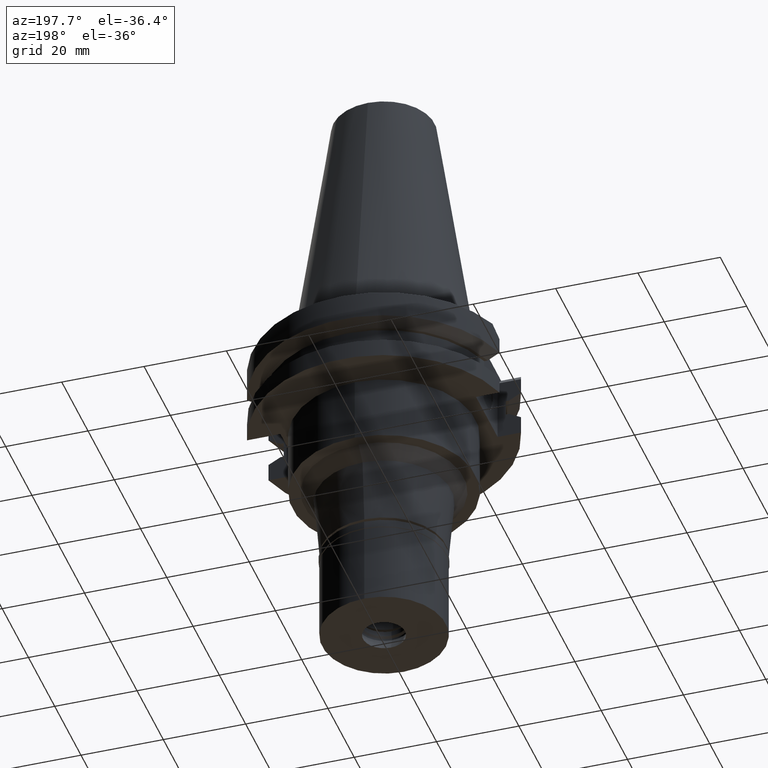
[diagram: clean part render]
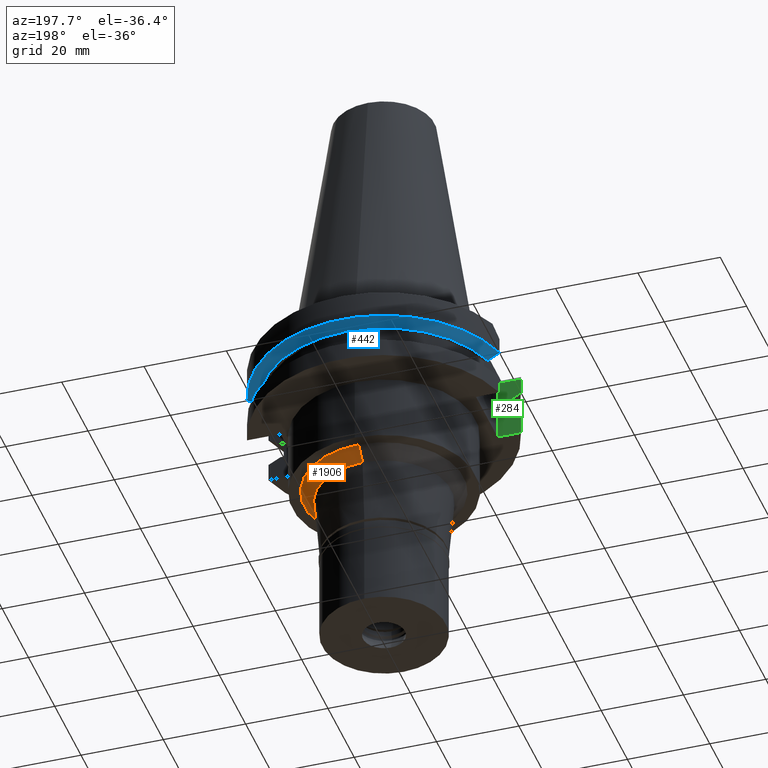
[diagram: same view with three faces highlighted in distinct colors, each labeled with its STEP entity id]
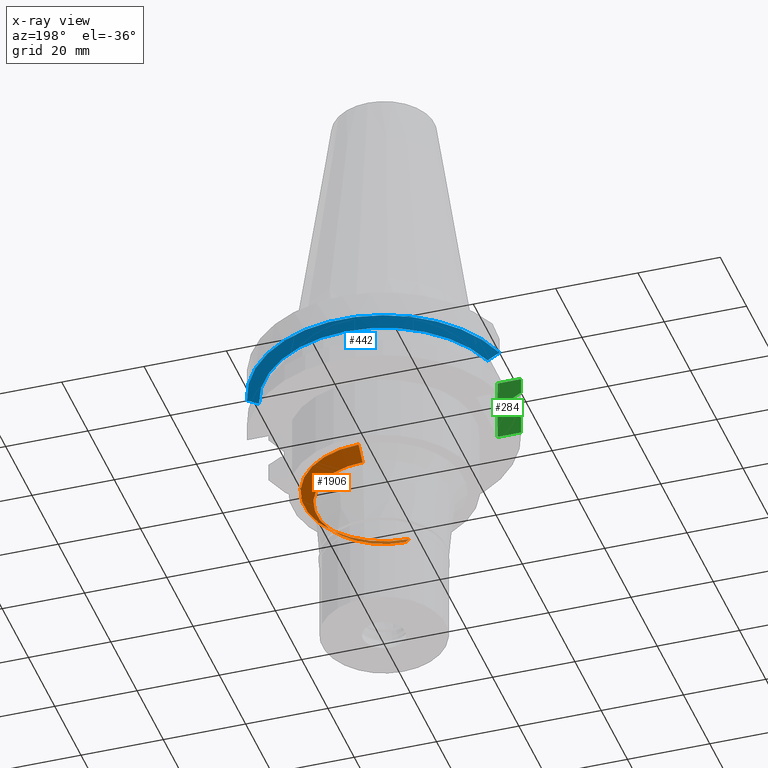
[diagram: x-ray of the same camera — body ghosted, the three highlighted faces saturated]
A machine part, auxiliary view with three faces highlighted in distinct colors.
The next image is the same camera in x-ray (body ghosted, the three faces saturated) — at least one of them is partly hidden behind the body in this view.
Their STEP definitions:

[orange] entity #1906 — the highlighted conical surface has half-angle 45 deg.
#91 = ORIENTED_EDGE ( 'NONE', *, *, #1382, .T. ) ;
#96 = VECTOR ( 'NONE', #1744, 1000.000000000000114 ) ;
#189 = CARTESIAN_POINT ( 'NONE',  ( 0.0000000000000000000, 16.34732541829999874, -38.00000000000000000 ) ) ;
#308 = ORIENTED_EDGE ( 'NONE', *, *, #1714, .T. ) ;
#312 = CARTESIAN_POINT ( 'NONE',  ( 0.0000000000000000000, 19.34732541830000230, -35.00000000000000000 ) ) ;
#328 = CARTESIAN_POINT ( 'NONE',  ( 0.0000000000000000000, 0.0000000000000000000, -35.00000000000000000 ) ) ;
#349 = CARTESIAN_POINT ( 'NONE',  ( 0.0000000000000000000, 0.0000000000000000000, -38.00000000000000000 ) ) ;
#412 = VERTEX_POINT ( 'NONE', #312 ) ;
#435 = AXIS2_PLACEMENT_3D ( 'NONE', #349, #3171, #1395 ) ;
#438 = CARTESIAN_POINT ( 'NONE',  ( 0.0000000000000000000, -16.34732541829999874, -38.00000000000000000 ) ) ;
#511 = CARTESIAN_POINT ( 'NONE',  ( 0.0000000000000000000, -19.34732541830000230, -35.00000000000000000 ) ) ;
#533 = AXIS2_PLACEMENT_3D ( 'NONE', #328, #600, #559 ) ;
#559 = DIRECTION ( 'NONE',  ( 0.0000000000000000000, 1.000000000000000000, 0.0000000000000000000 ) ) ;
#600 = DIRECTION ( 'NONE',  ( 0.0000000000000000000, 0.0000000000000000000, -1.000000000000000000 ) ) ;
#631 = LINE ( 'NONE', #678, #96 ) ;
#678 = CARTESIAN_POINT ( 'NONE',  ( 0.0000000000000000000, 19.34732541830000230, -35.00000000000000000 ) ) ;
#856 = EDGE_CURVE ( 'NONE', #412, #1564, #2013, .T. ) ;
#951 = ORIENTED_EDGE ( 'NONE', *, *, #856, .T. ) ;
#982 = EDGE_LOOP ( 'NONE', ( #951, #91, #308, #1645 ) ) ;
#984 = CIRCLE ( 'NONE', #435, 16.34732541829999874 ) ;
#1007 = EDGE_CURVE ( 'NONE', #412, #1334, #631, .T. ) ;
#1194 = LINE ( 'NONE', #1477, #3001 ) ;
#1334 = VERTEX_POINT ( 'NONE', #189 ) ;
#1382 = EDGE_CURVE ( 'NONE', #1564, #1424, #1194, .T. ) ;
#1395 = DIRECTION ( 'NONE',  ( 0.0000000000000000000, -1.000000000000000000, 0.0000000000000000000 ) ) ;
#1424 = VERTEX_POINT ( 'NONE', #438 ) ;
#1477 = CARTESIAN_POINT ( 'NONE',  ( 0.0000000000000000000, -19.34732541830000230, -35.00000000000000000 ) ) ;
#1522 = CONICAL_SURFACE ( 'NONE', #2894, 17.84732541829999874, 0.7853981633972997312 ) ;
#1564 = VERTEX_POINT ( 'NONE', #511 ) ;
#1645 = ORIENTED_EDGE ( 'NONE', *, *, #1007, .F. ) ;
#1714 = EDGE_CURVE ( 'NONE', #1424, #1334, #984, .T. ) ;
#1744 = DIRECTION ( 'NONE',  ( 0.0000000000000000000, -0.7071067811865975328, -0.7071067811864976127 ) ) ;
#1906 = ADVANCED_FACE ( 'NONE', ( #2747 ), #1522, .T. ) ;
#2013 = CIRCLE ( 'NONE', #533, 19.34732541830000230 ) ;
#2238 = DIRECTION ( 'NONE',  ( 0.0000000000000000000, 0.7071067811865975328, -0.7071067811864976127 ) ) ;
#2281 = DIRECTION ( 'NONE',  ( 0.0000000000000000000, 0.0000000000000000000, 1.000000000000000000 ) ) ;
#2747 = FACE_OUTER_BOUND ( 'NONE', #982, .T. ) ;
#2776 = DIRECTION ( 'NONE',  ( 0.0000000000000000000, 1.000000000000000000, 0.0000000000000000000 ) ) ;
#2894 = AXIS2_PLACEMENT_3D ( 'NONE', #3066, #2281, #2776 ) ;
#3001 = VECTOR ( 'NONE', #2238, 1000.000000000000114 ) ;
#3066 = CARTESIAN_POINT ( 'NONE',  ( 0.0000000000000000000, 0.0000000000000000000, -36.50000000000000000 ) ) ;
#3171 = DIRECTION ( 'NONE',  ( 0.0000000000000000000, 0.0000000000000000000, 1.000000000000000000 ) ) ;

[blue] entity #442 — the highlighted conical surface has half-angle 60 deg.
#88 = CARTESIAN_POINT ( 'NONE',  ( 28.71170968437685289, 8.189998727897421560, -8.701758259345771407 ) ) ;
#211 = VERTEX_POINT ( 'NONE', #509 ) ;
#377 = AXIS2_PLACEMENT_3D ( 'NONE', #2526, #3068, #691 ) ;
#380 = EDGE_CURVE ( 'NONE', #912, #2856, #1806, .T. ) ;
#393 = EDGE_CURVE ( 'NONE', #1567, #211, #2670, .T. ) ;
#442 = ADVANCED_FACE ( 'NONE', ( #1160 ), #752, .T. ) ;
#509 = CARTESIAN_POINT ( 'NONE',  ( 27.79399590312999990, 8.189999364648000935, -9.210000000000999165 ) ) ;
#584 = CARTESIAN_POINT ( 'NONE',  ( -28.71170638819459597, 8.190000377242785845, -8.701759837849344592 ) ) ;
#658 = ORIENTED_EDGE ( 'NONE', *, *, #393, .T. ) ;
#668 = DIRECTION ( 'NONE',  ( 0.0000000000000000000, 1.000000000000000000, 0.0000000000000000000 ) ) ;
#691 = DIRECTION ( 'NONE',  ( 0.9661575315241073270, 0.2579527559055020958, 0.0000000000000000000 ) ) ;
#752 = CONICAL_SURFACE ( 'NONE', #2942, 30.36276877526999840, 1.047197551196400456 ) ;
#802 = CARTESIAN_POINT ( 'NONE',  ( -27.79398349637000010, 8.190000188407999815, -9.210000000000999165 ) ) ;
#861 = CARTESIAN_POINT ( 'NONE',  ( -27.79398349637000010, 8.190000188407999815, -9.210000000000999165 ) ) ;
#902 = EDGE_CURVE ( 'NONE', #211, #912, #1086, .T. ) ;
#912 = VERTEX_POINT ( 'NONE', #802 ) ;
#1009 = ORIENTED_EDGE ( 'NONE', *, *, #1298, .F. ) ;
#1086 = CIRCLE ( 'NONE', #2463, 28.97553755052999946 ) ;
#1137 = CARTESIAN_POINT ( 'NONE',  ( 0.0000000000000000000, 1.121665249527999917E-14, -9.210000000002999343 ) ) ;
#1160 = FACE_OUTER_BOUND ( 'NONE', #2054, .T. ) ;
#1298 = EDGE_CURVE ( 'NONE', #1567, #2856, #2289, .T. ) ;
#1338 = CARTESIAN_POINT ( 'NONE',  ( 0.0000000000000000000, 1.121665249527999917E-14, -8.409081678974001051 ) ) ;
#1394 = CARTESIAN_POINT ( 'NONE',  ( -29.67220486527797618, 8.190001203277260444, -8.167813457077079065 ) ) ;
#1567 = VERTEX_POINT ( 'NONE', #2042 ) ;
#1649 = CARTESIAN_POINT ( 'NONE',  ( -30.67550146519999998, 8.190000601855000895, -7.608157979396000137 ) ) ;
#1806 = B_SPLINE_CURVE_WITH_KNOTS ( 'NONE', 3,
 ( #861, #584, #1394, #1649 ),
 .UNSPECIFIED., .F., .F.,
 ( 4, 4 ),
 ( 0.0000000000000000000, 1.000000000000000000 ),
 .UNSPECIFIED. ) ;
#1867 = CARTESIAN_POINT ( 'NONE',  ( 29.67220409969074524, 8.189999749697445708, -8.167814104152103738 ) ) ;
#1918 = DIRECTION ( 'NONE',  ( 0.0000000000000000000, 1.000000000000000000, 0.0000000000000000000 ) ) ;
#2042 = CARTESIAN_POINT ( 'NONE',  ( 30.67550165931999828, 8.189999874802001756, -7.608164476769999851 ) ) ;
#2054 = EDGE_LOOP ( 'NONE', ( #658, #2243, #2839, #1009 ) ) ;
#2173 = DIRECTION ( 'NONE',  ( 0.0000000000000000000, 0.0000000000000000000, 1.000000000000000000 ) ) ;
#2243 = ORIENTED_EDGE ( 'NONE', *, *, #902, .T. ) ;
#2289 = CIRCLE ( 'NONE', #377, 31.74999999999998579 ) ;
#2383 = DIRECTION ( 'NONE',  ( 0.0000000000000000000, 0.0000000000000000000, 1.000000000000000000 ) ) ;
#2463 = AXIS2_PLACEMENT_3D ( 'NONE', #1137, #2173, #1918 ) ;
#2526 = CARTESIAN_POINT ( 'NONE',  ( 0.0000000000000000000, 1.121665249527999917E-14, -7.608163357944999206 ) ) ;
#2670 = B_SPLINE_CURVE_WITH_KNOTS ( 'NONE', 3,
 ( #2700, #1867, #88, #2684 ),
 .UNSPECIFIED., .F., .F.,
 ( 4, 4 ),
 ( 0.0000000000000000000, 1.000000000000000000 ),
 .UNSPECIFIED. ) ;
#2684 = CARTESIAN_POINT ( 'NONE',  ( 27.79399590312999990, 8.189999364648000935, -9.210000000000999165 ) ) ;
#2700 = CARTESIAN_POINT ( 'NONE',  ( 30.67550165931999828, 8.189999874802001756, -7.608164476769999851 ) ) ;
#2839 = ORIENTED_EDGE ( 'NONE', *, *, #380, .T. ) ;
#2856 = VERTEX_POINT ( 'NONE', #3212 ) ;
#2942 = AXIS2_PLACEMENT_3D ( 'NONE', #1338, #2383, #668 ) ;
#3068 = DIRECTION ( 'NONE',  ( 0.0000000000000000000, 0.0000000000000000000, 1.000000000000000000 ) ) ;
#3212 = CARTESIAN_POINT ( 'NONE',  ( -30.67550146519999998, 8.190000601855000895, -7.608157979396000137 ) ) ;

[green] entity #284 — the highlighted planar face has unit normal (0, -1, 0).
#19 = VERTEX_POINT ( 'NONE', #419 ) ;
#143 = AXIS2_PLACEMENT_3D ( 'NONE', #1067, #1018, #2808 ) ;
#150 = ORIENTED_EDGE ( 'NONE', *, *, #2783, .T. ) ;
#151 = DIRECTION ( 'NONE',  ( -0.9999999999997072342, 7.650378709282062614E-07, 5.711653505963042449E-13 ) ) ;
#163 = EDGE_CURVE ( 'NONE', #720, #622, #3101, .T. ) ;
#217 = EDGE_CURVE ( 'NONE', #2769, #1537, #497, .T. ) ;
#251 = DIRECTION ( 'NONE',  ( -0.9999999999997073452, 7.650130652722063661E-07, -1.172279446875010413E-12 ) ) ;
#279 = CARTESIAN_POINT ( 'NONE',  ( -30.67550162588999640, -8.189999999999999503, -3.700000000000000178 ) ) ;
#284 = ADVANCED_FACE ( 'NONE', ( #1832 ), #2879, .F. ) ;
#363 = VECTOR ( 'NONE', #1894, 1000.000000000000000 ) ;
#367 = CARTESIAN_POINT ( 'NONE',  ( -27.79399590167999889, -8.189999364744998900, -9.210000000000999165 ) ) ;
#382 = VECTOR ( 'NONE', #251, 1000.000000000000114 ) ;
#413 = CARTESIAN_POINT ( 'NONE',  ( -30.67550165931000095, -8.189999874823000070, -14.65183552345999907 ) ) ;
#419 = CARTESIAN_POINT ( 'NONE',  ( -26.96361066326000255, -8.189999999999999503, -9.209999999999999076 ) ) ;
#447 = VERTEX_POINT ( 'NONE', #1732 ) ;
#460 = EDGE_CURVE ( 'NONE', #2437, #2940, #2505, .T. ) ;
#497 = LINE ( 'NONE', #1578, #1627 ) ;
#508 = LINE ( 'NONE', #3129, #382 ) ;
#532 = CARTESIAN_POINT ( 'NONE',  ( -24.98000000000000043, -8.189999999999999503, -19.05000000000000071 ) ) ;
#608 = EDGE_CURVE ( 'NONE', #622, #2940, #1157, .T. ) ;
#622 = VERTEX_POINT ( 'NONE', #413 ) ;
#679 = B_SPLINE_CURVE_WITH_KNOTS ( 'NONE', 3,
 ( #1487, #3050, #3251, #3033 ),
 .UNSPECIFIED., .F., .F.,
 ( 4, 4 ),
 ( 0.0000000000000000000, 1.000000000000000000 ),
 .UNSPECIFIED. ) ;
#720 = VERTEX_POINT ( 'NONE', #3310 ) ;
#743 = DIRECTION ( 'NONE',  ( 0.0000000000000000000, 0.0000000000000000000, 1.000000000000000000 ) ) ;
#775 = EDGE_CURVE ( 'NONE', #3300, #720, #2628, .T. ) ;
#822 = DIRECTION ( 'NONE',  ( -1.000000000000000000, 0.0000000000000000000, 0.0000000000000000000 ) ) ;
#834 = CARTESIAN_POINT ( 'NONE',  ( -24.98000000000000043, -8.189999999999999503, -19.05000000000000071 ) ) ;
#843 = ORIENTED_EDGE ( 'NONE', *, *, #3017, .T. ) ;
#1018 = DIRECTION ( 'NONE',  ( 0.0000000000000000000, -1.000000000000000000, 0.0000000000000000000 ) ) ;
#1032 = ORIENTED_EDGE ( 'NONE', *, *, #775, .T. ) ;
#1067 = CARTESIAN_POINT ( 'NONE',  ( -24.98000000000000043, -8.189999999999999503, -3.700000000000000178 ) ) ;
#1072 = VECTOR ( 'NONE', #1405, 1000.000000000000000 ) ;
#1152 = LINE ( 'NONE', #3085, #3198 ) ;
#1157 = B_SPLINE_CURVE_WITH_KNOTS ( 'NONE', 3,
 ( #1188, #1486, #1973, #2474, #1237, #2209 ),
 .UNSPECIFIED., .F., .F.,
 ( 4, 1, 1, 4 ),
 ( 0.0000000000000000000, 0.3333333333333000081, 0.6666666666667000474, 1.000000000000000000 ),
 .UNSPECIFIED. ) ;
#1188 = CARTESIAN_POINT ( 'NONE',  ( -30.67550165931000095, -8.189999874823000070, -14.65183552345999907 ) ) ;
#1208 = CARTESIAN_POINT ( 'NONE',  ( -26.96361066326000255, -8.189999999999999503, -13.05000000000000071 ) ) ;
#1237 = CARTESIAN_POINT ( 'NONE',  ( -28.10639452211999867, -8.189999364724000586, -13.22300865346999998 ) ) ;
#1262 = CARTESIAN_POINT ( 'NONE',  ( -27.79399590219000160, -8.189999364724000586, -13.05000000000000071 ) ) ;
#1281 = CARTESIAN_POINT ( 'NONE',  ( -30.67550165931000095, -8.189999874826002113, -7.608164476554999389 ) ) ;
#1346 = ORIENTED_EDGE ( 'NONE', *, *, #2793, .F. ) ;
#1405 = DIRECTION ( 'NONE',  ( 0.0000000000000000000, 0.0000000000000000000, 1.000000000000000000 ) ) ;
#1486 = CARTESIAN_POINT ( 'NONE',  ( -30.34756341402999880, -8.189999874823000070, -14.46890786035999987 ) ) ;
#1487 = CARTESIAN_POINT ( 'NONE',  ( -30.67550165931000095, -8.189999874826002113, -7.608164476554999389 ) ) ;
#1537 = VERTEX_POINT ( 'NONE', #2596 ) ;
#1578 = CARTESIAN_POINT ( 'NONE',  ( -30.67550165931000095, -8.189999874826002113, -7.608164476554999389 ) ) ;
#1627 = VECTOR ( 'NONE', #3151, 1000.000000000000114 ) ;
#1732 = CARTESIAN_POINT ( 'NONE',  ( -24.98000000000000043, -8.189999999999999503, -3.700000000000000178 ) ) ;
#1742 = ORIENTED_EDGE ( 'NONE', *, *, #217, .T. ) ;
#1789 = VECTOR ( 'NONE', #822, 1000.000000000000000 ) ;
#1791 = EDGE_LOOP ( 'NONE', ( #1871, #2419, #2860, #843, #2556, #2876, #1742, #150, #1346, #1032 ) ) ;
#1832 = FACE_OUTER_BOUND ( 'NONE', #1791, .T. ) ;
#1853 = VERTEX_POINT ( 'NONE', #367 ) ;
#1871 = ORIENTED_EDGE ( 'NONE', *, *, #163, .T. ) ;
#1894 = DIRECTION ( 'NONE',  ( 1.000000000000000000, 0.0000000000000000000, 0.0000000000000000000 ) ) ;
#1967 = EDGE_CURVE ( 'NONE', #2769, #1853, #679, .T. ) ;
#1973 = CARTESIAN_POINT ( 'NONE',  ( -29.69687214250999929, -8.189999973713000259, -14.10633600680000121 ) ) ;
#2009 = EDGE_CURVE ( 'NONE', #19, #1853, #508, .T. ) ;
#2040 = CARTESIAN_POINT ( 'NONE',  ( -30.67550162588999640, -8.189999999999999503, -19.05000000000000071 ) ) ;
#2091 = DIRECTION ( 'NONE',  ( -7.598959063614995936E-09, 2.846127223025999062E-08, 0.9999999999999996669 ) ) ;
#2170 = LINE ( 'NONE', #834, #1072 ) ;
#2209 = CARTESIAN_POINT ( 'NONE',  ( -27.79399590219000160, -8.189999364724000586, -13.05000000000000071 ) ) ;
#2230 = VECTOR ( 'NONE', #2091, 999.9999999999998863 ) ;
#2377 = CARTESIAN_POINT ( 'NONE',  ( -24.98000000000000043, -8.189999999999999503, -19.05000000000000071 ) ) ;
#2419 = ORIENTED_EDGE ( 'NONE', *, *, #608, .T. ) ;
#2437 = VERTEX_POINT ( 'NONE', #2980 ) ;
#2474 = CARTESIAN_POINT ( 'NONE',  ( -28.73637952759999692, -8.190000279771998848, -13.57237298006999993 ) ) ;
#2505 = LINE ( 'NONE', #1208, #3155 ) ;
#2556 = ORIENTED_EDGE ( 'NONE', *, *, #2009, .T. ) ;
#2596 = CARTESIAN_POINT ( 'NONE',  ( -30.67550162588999640, -8.189999999999999503, -3.700000000000000178 ) ) ;
#2628 = LINE ( 'NONE', #2377, #1789 ) ;
#2694 = LINE ( 'NONE', #279, #363 ) ;
#2769 = VERTEX_POINT ( 'NONE', #1281 ) ;
#2783 = EDGE_CURVE ( 'NONE', #1537, #447, #2694, .T. ) ;
#2793 = EDGE_CURVE ( 'NONE', #3300, #447, #2170, .T. ) ;
#2808 = DIRECTION ( 'NONE',  ( 0.0000000000000000000, 0.0000000000000000000, -1.000000000000000000 ) ) ;
#2860 = ORIENTED_EDGE ( 'NONE', *, *, #460, .F. ) ;
#2876 = ORIENTED_EDGE ( 'NONE', *, *, #1967, .F. ) ;
#2879 = PLANE ( 'NONE',  #143 ) ;
#2940 = VERTEX_POINT ( 'NONE', #1262 ) ;
#2980 = CARTESIAN_POINT ( 'NONE',  ( -26.96361066326000255, -8.189999999999999503, -13.05000000000000071 ) ) ;
#3017 = EDGE_CURVE ( 'NONE', #2437, #19, #1152, .T. ) ;
#3033 = CARTESIAN_POINT ( 'NONE',  ( -27.79399590167999889, -8.189999364744998900, -9.210000000000999165 ) ) ;
#3050 = CARTESIAN_POINT ( 'NONE',  ( -29.67220410130579822, -8.189999749745568991, -8.167814103243918211 ) ) ;
#3085 = CARTESIAN_POINT ( 'NONE',  ( -26.96361066326000255, -8.189999999999999503, -13.05000000000000071 ) ) ;
#3101 = LINE ( 'NONE', #2040, #2230 ) ;
#3129 = CARTESIAN_POINT ( 'NONE',  ( -26.96361066326000255, -8.189999999999999503, -9.209999999999999076 ) ) ;
#3151 = DIRECTION ( 'NONE',  ( 8.551464643735994478E-09, -3.202885034752998202E-08, 0.9999999999999994449 ) ) ;
#3155 = VECTOR ( 'NONE', #151, 1000.000000000000227 ) ;
#3198 = VECTOR ( 'NONE', #743, 1000.000000000000000 ) ;
#3251 = CARTESIAN_POINT ( 'NONE',  ( -28.71170968557751735, -8.189998728091252289, -8.701758258651798528 ) ) ;
#3300 = VERTEX_POINT ( 'NONE', #532 ) ;
#3310 = CARTESIAN_POINT ( 'NONE',  ( -30.67550162588999640, -8.189999999999999503, -19.05000000000000071 ) ) ;